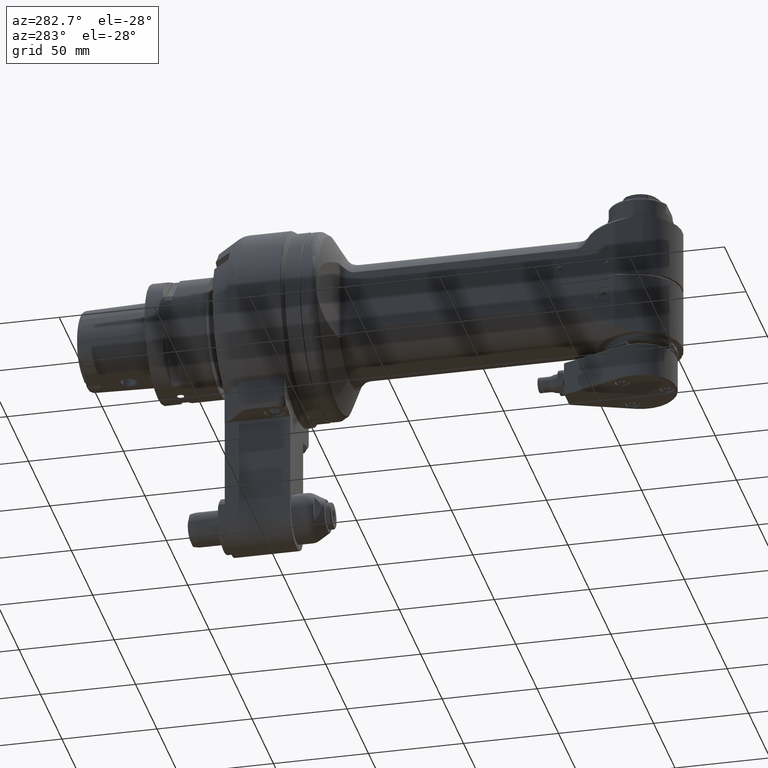
[diagram: clean part render]
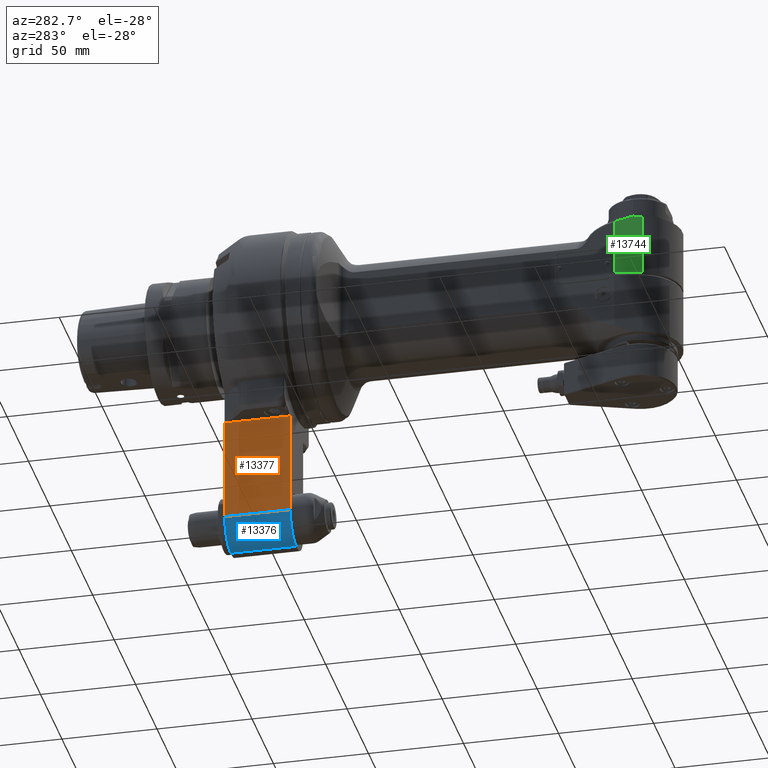
[diagram: same view with three faces highlighted in distinct colors, each labeled with its STEP entity id]
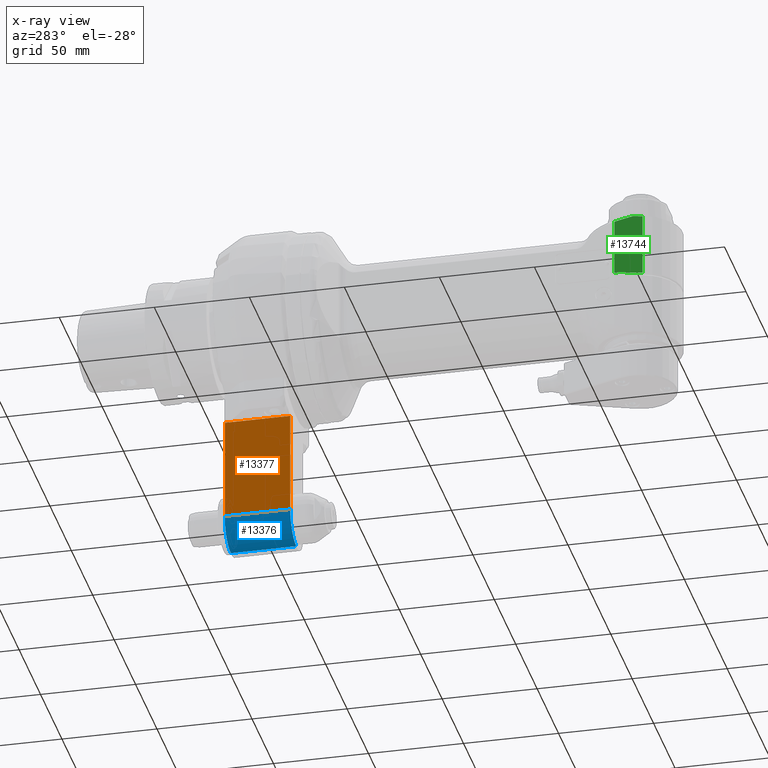
[diagram: x-ray of the same camera — body ghosted, the three highlighted faces saturated]
A machine part, auxiliary view with three faces highlighted in distinct colors.
The next image is the same camera in x-ray (body ghosted, the three faces saturated) — at least one of them is partly hidden behind the body in this view.
Their STEP definitions:

[orange] entity #13377 — the highlighted planar face has unit normal (1, -0, 0).
#676=LINE('',#20378,#1568);
#795=LINE('',#22164,#1687);
#821=LINE('',#22355,#1713);
#822=LINE('',#22357,#1714);
#1568=VECTOR('',#16015,54.5);
#1687=VECTOR('',#16550,54.5);
#1713=VECTOR('',#16630,34.5);
#1714=VECTOR('',#16633,34.5);
#2823=PLANE('',#14460);
#3269=FACE_OUTER_BOUND('',#4128,.T.);
#4128=EDGE_LOOP('',(#9927,#9928,#9929,#9930));
#5796=VERTEX_POINT('',#20375);
#5797=VERTEX_POINT('',#20377);
#5984=VERTEX_POINT('',#22161);
#5985=VERTEX_POINT('',#22163);
#7166=EDGE_CURVE('',#5796,#5797,#676,.T.);
#7449=EDGE_CURVE('',#5985,#5984,#795,.T.);
#7491=EDGE_CURVE('',#5985,#5796,#821,.T.);
#7492=EDGE_CURVE('',#5797,#5984,#822,.T.);
#9927=ORIENTED_EDGE('',*,*,#7492,.F.);
#9928=ORIENTED_EDGE('',*,*,#7166,.F.);
#9929=ORIENTED_EDGE('',*,*,#7491,.F.);
#9930=ORIENTED_EDGE('',*,*,#7449,.T.);
#13377=ADVANCED_FACE('',(#3269),#2823,.F.);
#14460=AXIS2_PLACEMENT_3D('',#22356,#16631,#16632);
#16015=DIRECTION('',(0.,0.,1.));
#16550=DIRECTION('',(0.,0.,1.));
#16630=DIRECTION('',(0.,1.,0.));
#16631=DIRECTION('center_axis',(1.,0.,0.));
#16632=DIRECTION('ref_axis',(0.,0.,1.));
#16633=DIRECTION('',(0.,-1.,0.));
#20375=CARTESIAN_POINT('',(-15.,39.5,-112.));
#20377=CARTESIAN_POINT('',(-15.,39.5,-57.5));
#20378=CARTESIAN_POINT('',(-15.,39.5,-112.));
#22161=CARTESIAN_POINT('',(-15.,5.,-57.5));
#22163=CARTESIAN_POINT('',(-15.,5.,-112.));
#22164=CARTESIAN_POINT('',(-15.,5.,-112.));
#22355=CARTESIAN_POINT('',(-15.,5.,-112.));
#22356=CARTESIAN_POINT('Origin',(-15.,1.505997599982,-63.45));
#22357=CARTESIAN_POINT('',(-15.,39.5,-57.5));

[blue] entity #13376 — the highlighted cylindrical surface (edge-blend (fillet) strip) has radius 14 mm, axis along (-0, -1, 0).
#820=LINE('',#22353,#1712);
#821=LINE('',#22355,#1713);
#1712=VECTOR('',#16627,34.5);
#1713=VECTOR('',#16630,34.5);
#2464=CYLINDRICAL_SURFACE('',#14459,14.);
#3268=FACE_OUTER_BOUND('',#4127,.T.);
#4127=EDGE_LOOP('',(#9923,#9924,#9925,#9926));
#4985=CIRCLE('',#14224,14.);
#5089=CIRCLE('',#14433,14.);
#5795=VERTEX_POINT('',#20373);
#5796=VERTEX_POINT('',#20375);
#5985=VERTEX_POINT('',#22163);
#5986=VERTEX_POINT('',#22165);
#7165=EDGE_CURVE('',#5795,#5796,#4985,.T.);
#7450=EDGE_CURVE('',#5985,#5986,#5089,.T.);
#7490=EDGE_CURVE('',#5795,#5986,#820,.T.);
#7491=EDGE_CURVE('',#5985,#5796,#821,.T.);
#9923=ORIENTED_EDGE('',*,*,#7490,.T.);
#9924=ORIENTED_EDGE('',*,*,#7450,.F.);
#9925=ORIENTED_EDGE('',*,*,#7491,.T.);
#9926=ORIENTED_EDGE('',*,*,#7165,.F.);
#13376=ADVANCED_FACE('',(#3268),#2464,.T.);
#14224=AXIS2_PLACEMENT_3D('',#20376,#16013,#16014);
#14433=AXIS2_PLACEMENT_3D('',#22166,#16551,#16552);
#14459=AXIS2_PLACEMENT_3D('',#22354,#16628,#16629);
#16013=DIRECTION('center_axis',(0.,1.,0.));
#16014=DIRECTION('ref_axis',(0.,0.,-1.));
#16551=DIRECTION('center_axis',(0.,-1.,0.));
#16552=DIRECTION('ref_axis',(-1.,0.,0.));
#16627=DIRECTION('',(0.,-1.,0.));
#16628=DIRECTION('center_axis',(0.,-1.,0.));
#16629=DIRECTION('ref_axis',(0.,0.,-1.));
#16630=DIRECTION('',(0.,1.,0.));
#20373=CARTESIAN_POINT('',(-1.,39.5,-126.));
#20375=CARTESIAN_POINT('',(-15.,39.5,-112.));
#20376=CARTESIAN_POINT('Origin',(-1.,39.5,-112.));
#22163=CARTESIAN_POINT('',(-15.,5.,-112.));
#22165=CARTESIAN_POINT('',(-1.,5.,-126.));
#22166=CARTESIAN_POINT('Origin',(-1.,5.,-112.));
#22353=CARTESIAN_POINT('',(-1.,39.5,-126.));
#22354=CARTESIAN_POINT('Origin',(-1.,31.,-112.));
#22355=CARTESIAN_POINT('',(-15.,5.,-112.));

[green] entity #13744 — the highlighted planar face has unit normal (0.9659, 0.2588, -0).
#85=ELLIPSE('',#15151,277.889209732641,61.2357652891812);
#162=(
BOUNDED_CURVE()
B_SPLINE_CURVE(2,(#27567,#27568,#27569),.UNSPECIFIED.,.F.,.F.)
B_SPLINE_CURVE_WITH_KNOTS((3,3),(0.341072376168312,0.608381197846049),
 .UNSPECIFIED.)
CURVE()
GEOMETRIC_REPRESENTATION_ITEM()
RATIONAL_B_SPLINE_CURVE((1.04649511187481,1.05761849595407,1.05761849595395))
REPRESENTATION_ITEM('')
);
#1159=LINE('',#27288,#2051);
#1172=LINE('',#27571,#2064);
#1173=LINE('',#27572,#2065);
#1174=LINE('',#27573,#2066);
#2051=VECTOR('',#18276,10.);
#2064=VECTOR('',#18367,12.0000000000003);
#2065=VECTOR('',#18368,32.83431457505);
#2066=VECTOR('',#18369,29.55383641199);
#2987=PLANE('',#15152);
#3636=FACE_OUTER_BOUND('',#4550,.T.);
#4550=EDGE_LOOP('',(#11736,#11737,#11738,#11739,#11740,#11741));
#6546=VERTEX_POINT('',#27283);
#6547=VERTEX_POINT('',#27287);
#6593=VERTEX_POINT('',#27561);
#6594=VERTEX_POINT('',#27565);
#6595=VERTEX_POINT('',#27566);
#6596=VERTEX_POINT('',#27570);
#8328=EDGE_CURVE('',#6546,#6547,#1159,.T.);
#8390=EDGE_CURVE('',#6546,#6593,#85,.T.);
#8391=EDGE_CURVE('',#6594,#6595,#162,.T.);
#8392=EDGE_CURVE('',#6596,#6595,#1172,.T.);
#8393=EDGE_CURVE('',#6547,#6596,#1173,.T.);
#8394=EDGE_CURVE('',#6594,#6593,#1174,.T.);
#11736=ORIENTED_EDGE('',*,*,#8391,.T.);
#11737=ORIENTED_EDGE('',*,*,#8392,.F.);
#11738=ORIENTED_EDGE('',*,*,#8393,.F.);
#11739=ORIENTED_EDGE('',*,*,#8328,.F.);
#11740=ORIENTED_EDGE('',*,*,#8390,.T.);
#11741=ORIENTED_EDGE('',*,*,#8394,.F.);
#13744=ADVANCED_FACE('',(#3636),#2987,.F.);
#15151=AXIS2_PLACEMENT_3D('',#27563,#18363,#18364);
#15152=AXIS2_PLACEMENT_3D('',#27564,#18365,#18366);
#18276=DIRECTION('',(0.965925826289076,0.,0.258819045102493));
#18363=DIRECTION('center_axis',(0.258819045102493,0.,-0.965925826289076));
#18364=DIRECTION('ref_axis',(-0.965925826289076,5.39352026185531E-16,-0.258819045102493));
#18365=DIRECTION('center_axis',(-0.258819045102493,0.,0.965925826289076));
#18366=DIRECTION('ref_axis',(0.965925826289076,0.,0.258819045102493));
#18367=DIRECTION('',(-0.965925826289076,0.,-0.258819045102493));
#18368=DIRECTION('',(0.,1.,0.));
#18369=DIRECTION('',(1.301911431545E-8,-1.,3.983279209326E-9));
#27283=CARTESIAN_POINT('',(209.097598665295,-33.5000040656488,-22.4819815240807));
#27287=CARTESIAN_POINT('',(213.6940189923,-33.5,-21.25036817836));
#27288=CARTESIAN_POINT('',(223.490652362147,-33.5,-18.6253681783659));
#27561=CARTESIAN_POINT('',(199.7002025242,-29.96442181458,-25.));
#27563=CARTESIAN_POINT('Origin',(433.789439788861,9.99200722162641E-15,
37.7240220818601));
#27564=CARTESIAN_POINT('Origin',(213.6940189923,-33.5,-21.25036817836));
#27565=CARTESIAN_POINT('',(199.700202123076,-0.410585251316695,-25.0000001115712));
#27566=CARTESIAN_POINT('',(202.1029090768,-0.6656854249492,-24.35619671959));
#27567=CARTESIAN_POINT('Ctrl Pts',(199.700202147,-0.410585124095977,-25.0000001010868));
#27568=CARTESIAN_POINT('Ctrl Pts',(200.914190712416,-0.665685424969187,
-24.6747128453629));
#27569=CARTESIAN_POINT('Ctrl Pts',(202.102909076799,-0.66568542496656,-24.3561967195986));
#27570=CARTESIAN_POINT('',(213.6940189923,-0.6656854249492,-21.25036817836));
#27571=CARTESIAN_POINT('',(213.6940189923,-0.6656854249492,-21.25036817836));
#27572=CARTESIAN_POINT('',(213.6940189923,-33.5,-21.25036817836));
#27573=CARTESIAN_POINT('',(199.7002021395,-0.4105854025825,-25.00000011772));